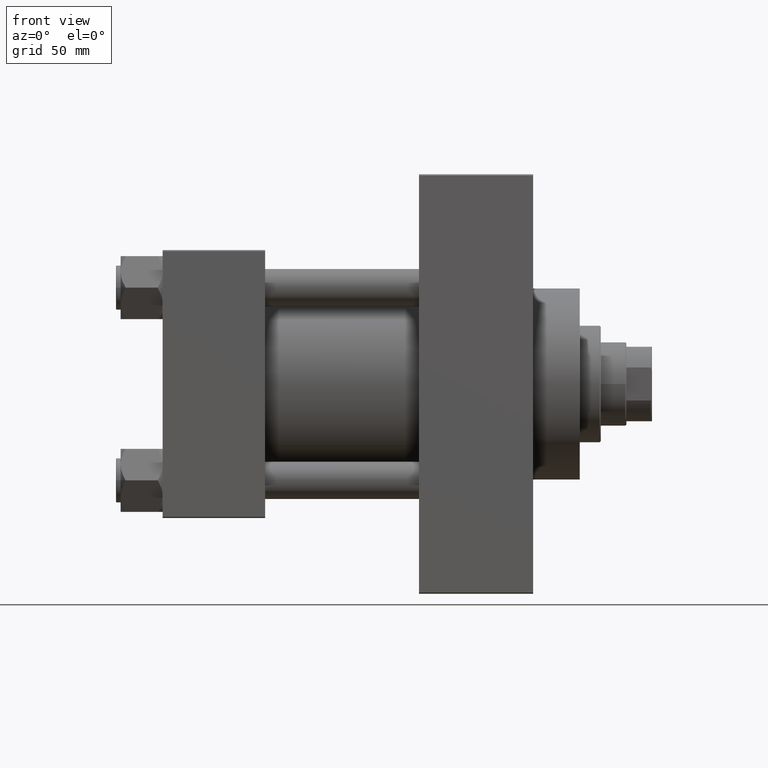
[diagram: clean part render]
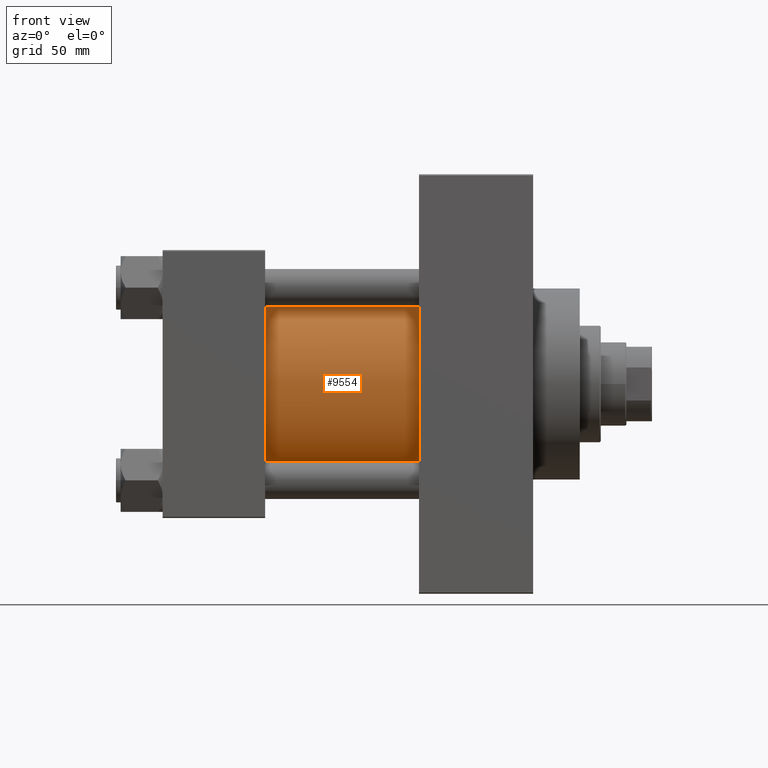
[diagram: same view with one face highlighted and labeled with its STEP entity id]
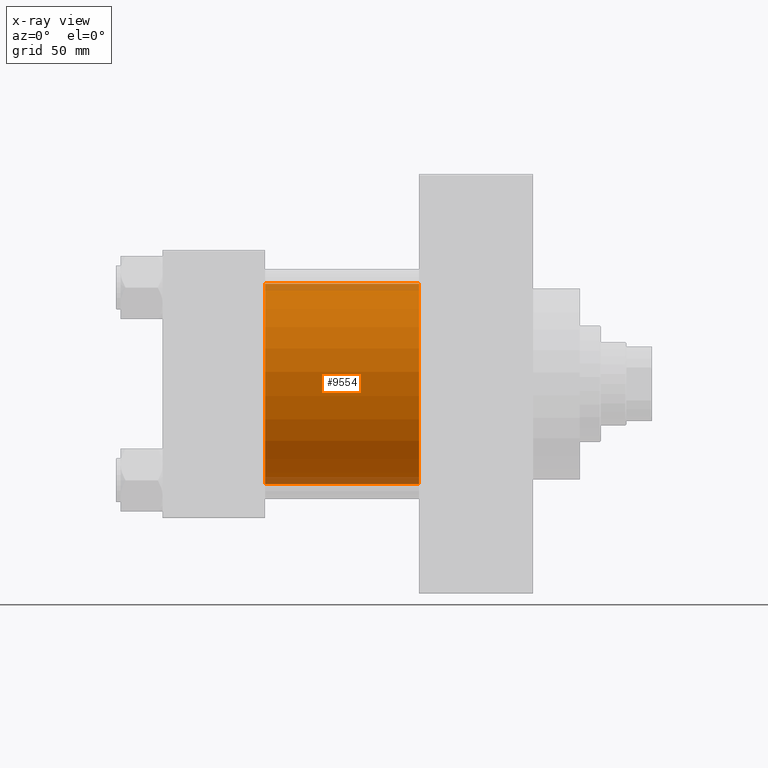
[diagram: x-ray of the same camera — body ghosted, the highlighted face saturated]
A machine part, front view. The second image highlights one B-rep face of the part: STEP entity #9554.
The next image is the same camera in x-ray: the body ghosted, the highlighted face saturated — about 7% of this face is hidden behind the body in this view.
In plain terms, the highlighted cylindrical surface (partial cylindrical patch) has radius 43 mm, axis along (-1, -0, -0).
Its self-contained STEP definition (entity closure, byte-faithful):
#38 = DIRECTION ( 'NONE',  ( 0.000000000000000000, 0.000000000000000000, -1.000000000000000000 ) ) ;
#995 = ORIENTED_EDGE ( 'NONE', *, *, #31812, .T. ) ;
#1089 = CIRCLE ( 'NONE', #40315, 43.00000000000000000 ) ;
#2101 = DIRECTION ( 'NONE',  ( -1.000000000000000000, -0.000000000000000000, -0.000000000000000000 ) ) ;
#2810 = CARTESIAN_POINT ( 'NONE',  ( 110.0000000000000000, -2.602085213965210642E-15, 0.000000000000000000 ) ) ;
#3389 = CARTESIAN_POINT ( 'NONE',  ( 110.0000000000000000, 2.663896022368408223E-15, -43.00000000000000000 ) ) ;
#9172 = DIRECTION ( 'NONE',  ( 1.000000000000000000, -0.000000000000000000, 0.000000000000000000 ) ) ;
#9554 = ADVANCED_FACE ( 'NONE', ( #13412 ), #28837, .T. ) ;
#10212 = VERTEX_POINT ( 'NONE', #46661 ) ;
#10403 = LINE ( 'NONE', #29215, #31132 ) ;
#11197 = CARTESIAN_POINT ( 'NONE',  ( 110.0000000000000000, 2.663896022368408223E-15, -43.00000000000000000 ) ) ;
#11692 = VERTEX_POINT ( 'NONE', #31610 ) ;
#11754 = CARTESIAN_POINT ( 'NONE',  ( 110.0000000000000000, -2.602085213965210642E-15, 0.000000000000000000 ) ) ;
#13412 = FACE_OUTER_BOUND ( 'NONE', #43283, .T. ) ;
#15055 = AXIS2_PLACEMENT_3D ( 'NONE', #2810, #2101, #28128 ) ;
#17257 = VECTOR ( 'NONE', #40607, 1000.000000000000000 ) ;
#19128 = LINE ( 'NONE', #11197, #17257 ) ;
#19665 = ORIENTED_EDGE ( 'NONE', *, *, #33471, .F. ) ;
#21148 = ORIENTED_EDGE ( 'NONE', *, *, #36216, .T. ) ;
#23679 = CIRCLE ( 'NONE', #29854, 43.00000000000000000 ) ;
#23865 = DIRECTION ( 'NONE',  ( 0.000000000000000000, 0.000000000000000000, 1.000000000000000000 ) ) ;
#25582 = DIRECTION ( 'NONE',  ( 1.000000000000000000, 0.000000000000000000, 0.000000000000000000 ) ) ;
#26317 = ORIENTED_EDGE ( 'NONE', *, *, #44564, .F. ) ;
#26321 = VERTEX_POINT ( 'NONE', #37848 ) ;
#27729 = CARTESIAN_POINT ( 'NONE',  ( 44.00000000000000000, -2.602085213965210642E-15, 0.000000000000000000 ) ) ;
#28128 = DIRECTION ( 'NONE',  ( 0.000000000000000000, 0.000000000000000000, 1.000000000000000000 ) ) ;
#28837 = CYLINDRICAL_SURFACE ( 'NONE', #15055, 43.00000000000000000 ) ;
#29215 = CARTESIAN_POINT ( 'NONE',  ( 110.0000000000000000, -2.602085213965210642E-15, 43.00000000000000000 ) ) ;
#29444 = DIRECTION ( 'NONE',  ( -1.000000000000000000, -0.000000000000000000, -0.000000000000000000 ) ) ;
#29854 = AXIS2_PLACEMENT_3D ( 'NONE', #11754, #25582, #38 ) ;
#31132 = VECTOR ( 'NONE', #29444, 1000.000000000000000 ) ;
#31610 = CARTESIAN_POINT ( 'NONE',  ( 44.00000000000000000, -2.602085213965210642E-15, 43.00000000000000000 ) ) ;
#31812 = EDGE_CURVE ( 'NONE', #11692, #10212, #1089, .T. ) ;
#33471 = EDGE_CURVE ( 'NONE', #42513, #10212, #19128, .T. ) ;
#36216 = EDGE_CURVE ( 'NONE', #26321, #11692, #10403, .T. ) ;
#37848 = CARTESIAN_POINT ( 'NONE',  ( 110.0000000000000000, -2.602085213965210642E-15, 43.00000000000000000 ) ) ;
#40315 = AXIS2_PLACEMENT_3D ( 'NONE', #27729, #9172, #23865 ) ;
#40607 = DIRECTION ( 'NONE',  ( -1.000000000000000000, -0.000000000000000000, -0.000000000000000000 ) ) ;
#42513 = VERTEX_POINT ( 'NONE', #3389 ) ;
#43283 = EDGE_LOOP ( 'NONE', ( #19665, #26317, #21148, #995 ) ) ;
#44564 = EDGE_CURVE ( 'NONE', #26321, #42513, #23679, .T. ) ;
#46661 = CARTESIAN_POINT ( 'NONE',  ( 44.00000000000000000, 2.663896022368408223E-15, -43.00000000000000000 ) ) ;